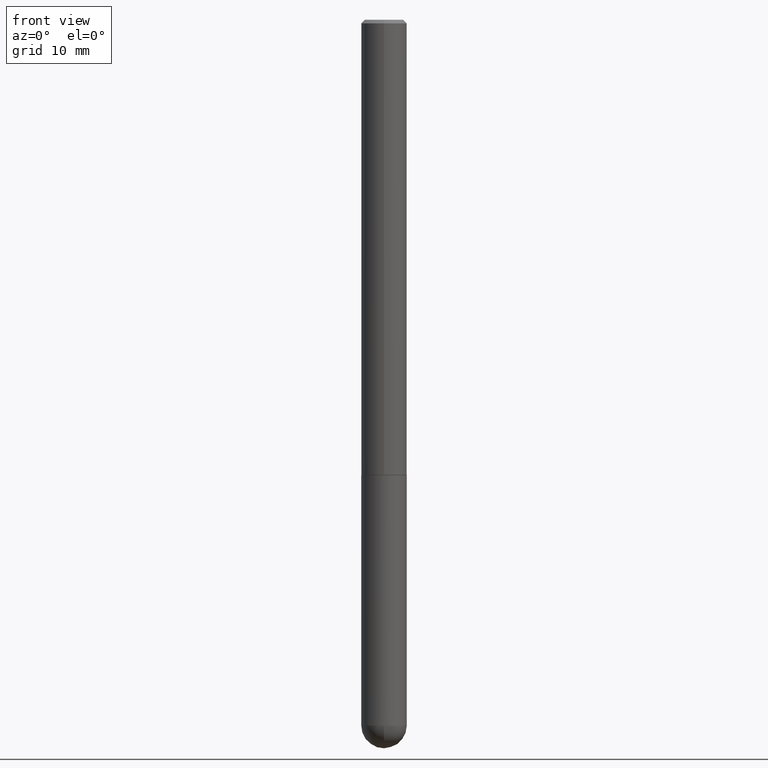
[diagram: clean part render]
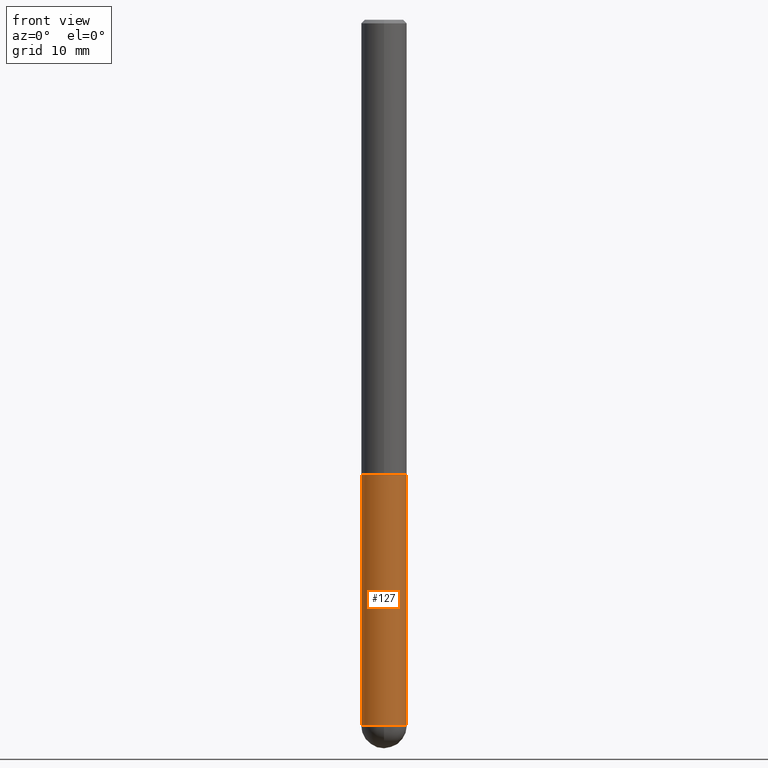
[diagram: same view with one face highlighted and labeled with its STEP entity id]
A machine part, front view. The second image highlights one B-rep face of the part: STEP entity #127.
In plain terms, the highlighted cylindrical surface (edge-blend (fillet) strip) has radius 3.175 mm, axis along (-0, 0, 1).
Its self-contained STEP definition (entity closure, byte-faithful):
#1 = CARTESIAN_POINT ( 'NONE',  ( 0.1250000000000000000, -9.601573681818648281E-15, -2.500000000000000000 ) ) ;
#13 = DIRECTION ( 'NONE',  ( -2.445468806185136877E-29, 3.491481338843145188E-15, 1.000000000000000000 ) ) ;
#20 = CARTESIAN_POINT ( 'NONE',  ( -0.1250000000000000000, -1.024091834786240099E-14, -2.500000000000000000 ) ) ;
#48 = ORIENTED_EDGE ( 'NONE', *, *, #234, .F. ) ;
#51 = CARTESIAN_POINT ( 'NONE',  ( 0.1250000000000000000, -1.200196710227331272E-14, -3.875000000000000000 ) ) ;
#53 = CARTESIAN_POINT ( 'NONE',  ( 0.000000000000000000, 0.000000000000000000, 0.000000000000000000 ) ) ;
#66 = VECTOR ( 'NONE', #237, 39.37007874015748143 ) ;
#74 = CIRCLE ( 'NONE', #213, 0.1250000000000000000 ) ;
#75 = DIRECTION ( 'NONE',  ( -2.445468806185136597E-29, 3.491481338843145583E-15, 1.000000000000000000 ) ) ;
#91 = EDGE_CURVE ( 'NONE', #211, #402, #292, .T. ) ;
#92 = CARTESIAN_POINT ( 'NONE',  ( 9.476191623967404313E-29, -1.352949018801718908E-14, -3.875000000000000000 ) ) ;
#108 = CYLINDRICAL_SURFACE ( 'NONE', #308, 0.1250000000000000000 ) ;
#109 = VERTEX_POINT ( 'NONE', #20 ) ;
#127 = ADVANCED_FACE ( 'NONE', ( #365 ), #108, .T. ) ;
#130 = EDGE_CURVE ( 'NONE', #166, #109, #339, .T. ) ;
#140 = CARTESIAN_POINT ( 'NONE',  ( 9.476191623967404313E-29, -1.352949018801718908E-14, -3.875000000000000000 ) ) ;
#146 = CARTESIAN_POINT ( 'NONE',  ( -0.1250000000000000000, -1.024091834786240415E-14, -3.875000000000000000 ) ) ;
#166 = VERTEX_POINT ( 'NONE', #146 ) ;
#183 = CIRCLE ( 'NONE', #265, 0.1250000000000000000 ) ;
#184 = CARTESIAN_POINT ( 'NONE',  ( -8.881784197000325412E-16, -0.1250000000000138500, -3.874999999999999556 ) ) ;
#193 = EDGE_CURVE ( 'NONE', #166, #298, #183, .T. ) ;
#202 = CARTESIAN_POINT ( 'NONE',  ( 0.1250000000000000000, -8.728703347107833388E-16, 6.095220969744919741E-30 ) ) ;
#205 = DIRECTION ( 'NONE',  ( -2.445468806185136597E-29, 3.491481338843145583E-15, 1.000000000000000000 ) ) ;
#211 = VERTEX_POINT ( 'NONE', #51 ) ;
#213 = AXIS2_PLACEMENT_3D ( 'NONE', #92, #410, #256 ) ;
#234 = EDGE_CURVE ( 'NONE', #109, #402, #299, .T. ) ;
#237 = DIRECTION ( 'NONE',  ( -2.445468806185136877E-29, 3.491481338843145188E-15, 1.000000000000000000 ) ) ;
#239 = CARTESIAN_POINT ( 'NONE',  ( -0.1250000000000000000, 8.881784197001252323E-16, -6.148668862818632227E-30 ) ) ;
#244 = CARTESIAN_POINT ( 'NONE',  ( 6.113672015462842613E-29, -8.728703347107864943E-15, -2.500000000000000000 ) ) ;
#250 = EDGE_LOOP ( 'NONE', ( #374, #330, #264, #340, #48 ) ) ;
#256 = DIRECTION ( 'NONE',  ( 1.000000000000000000, -6.982962677686262766E-15, 0.000000000000000000 ) ) ;
#264 = ORIENTED_EDGE ( 'NONE', *, *, #317, .T. ) ;
#265 = AXIS2_PLACEMENT_3D ( 'NONE', #140, #205, #275 ) ;
#275 = DIRECTION ( 'NONE',  ( 1.000000000000000000, -6.982962677686262766E-15, 0.000000000000000000 ) ) ;
#277 = VECTOR ( 'NONE', #13, 39.37007874015748143 ) ;
#278 = DIRECTION ( 'NONE',  ( 1.000000000000000000, -6.982962677686270655E-15, 0.000000000000000000 ) ) ;
#292 = LINE ( 'NONE', #202, #277 ) ;
#298 = VERTEX_POINT ( 'NONE', #184 ) ;
#299 = CIRCLE ( 'NONE', #358, 0.1250000000000000000 ) ;
#308 = AXIS2_PLACEMENT_3D ( 'NONE', #53, #75, #367 ) ;
#317 = EDGE_CURVE ( 'NONE', #298, #211, #74, .T. ) ;
#330 = ORIENTED_EDGE ( 'NONE', *, *, #193, .T. ) ;
#339 = LINE ( 'NONE', #239, #66 ) ;
#340 = ORIENTED_EDGE ( 'NONE', *, *, #91, .T. ) ;
#346 = DIRECTION ( 'NONE',  ( -2.445468806185136597E-29, 3.491481338843145583E-15, 1.000000000000000000 ) ) ;
#358 = AXIS2_PLACEMENT_3D ( 'NONE', #244, #346, #278 ) ;
#365 = FACE_OUTER_BOUND ( 'NONE', #250, .T. ) ;
#367 = DIRECTION ( 'NONE',  ( 1.000000000000000000, -6.982962677686266711E-15, 4.876176775795935793E-29 ) ) ;
#374 = ORIENTED_EDGE ( 'NONE', *, *, #130, .F. ) ;
#402 = VERTEX_POINT ( 'NONE', #1 ) ;
#410 = DIRECTION ( 'NONE',  ( -2.445468806185136597E-29, 3.491481338843145583E-15, 1.000000000000000000 ) ) ;